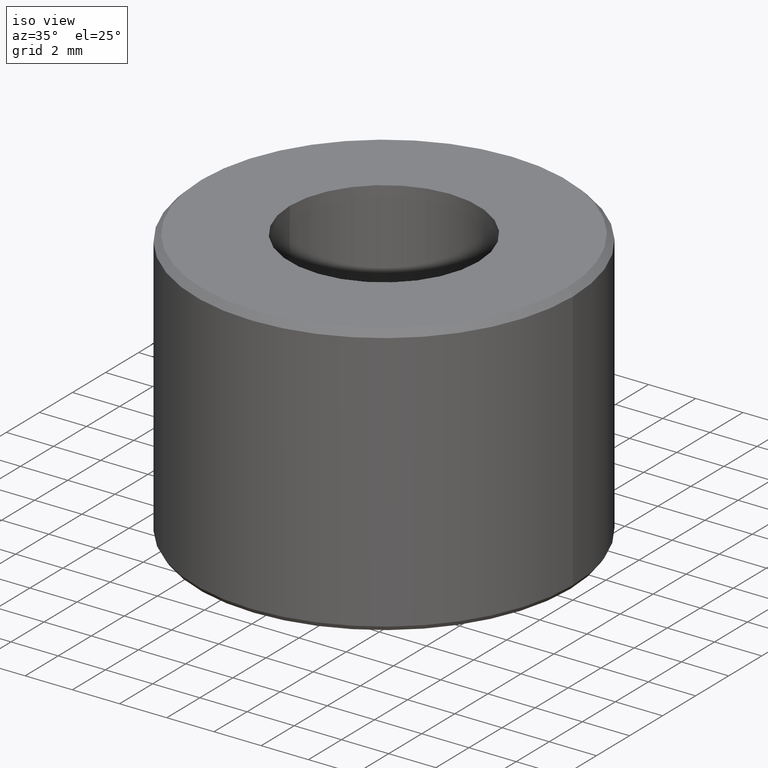
[diagram: clean part render]
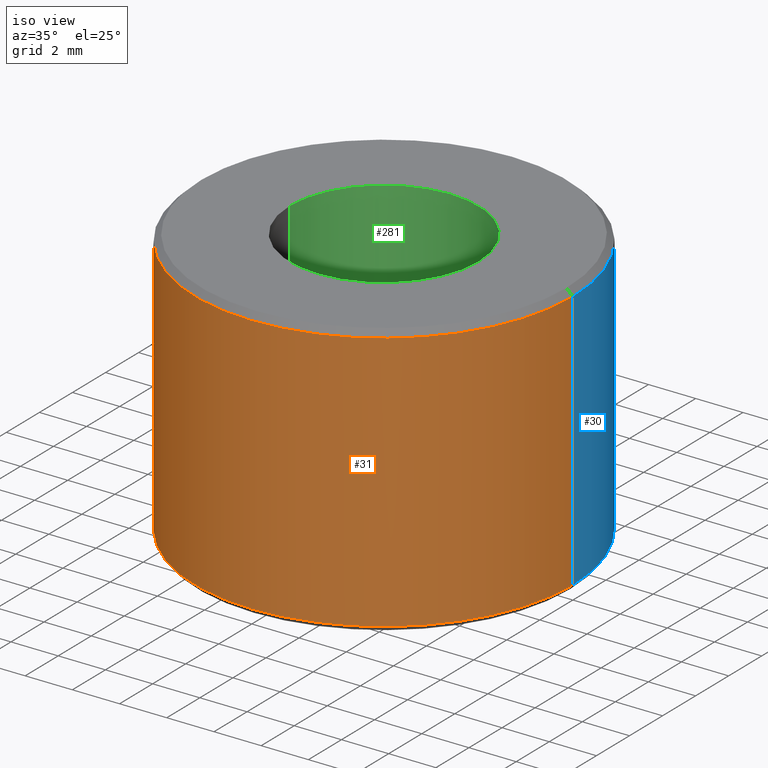
[diagram: same view with three faces highlighted in distinct colors, each labeled with its STEP entity id]
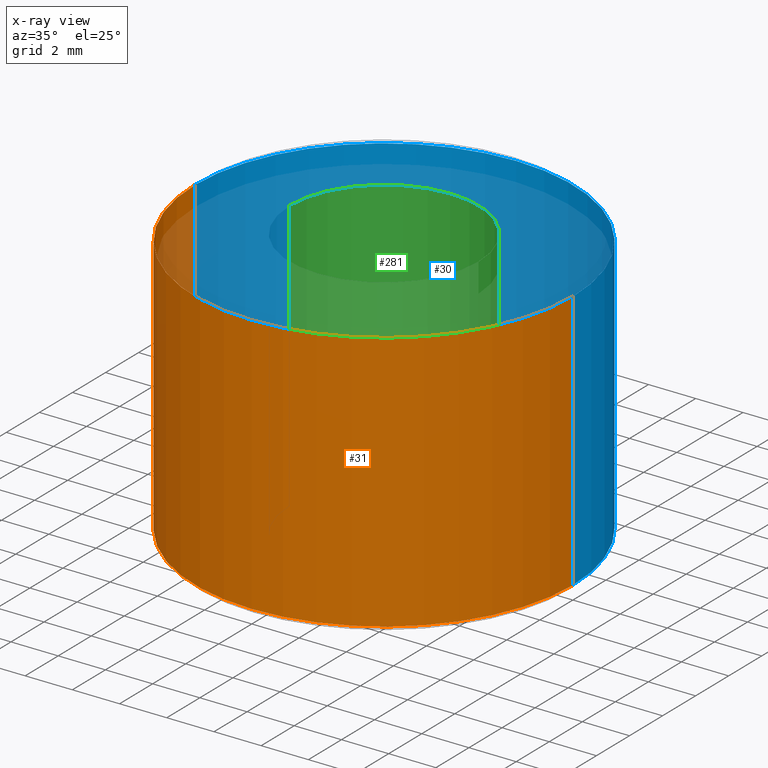
[diagram: x-ray of the same camera — body ghosted, the three highlighted faces saturated]
A machine part, iso view with three faces highlighted in distinct colors.
The next image is the same camera in x-ray (body ghosted, the three faces saturated) — at least one of them is partly hidden behind the body in this view.
Their STEP definitions:

[orange] entity #31 — the highlighted cylindrical surface (partial cylindrical patch) has radius 8 mm, axis along (-0, -0, 1).
#3 = EDGE_CURVE ( 'NONE', #91, #215, #121, .T. ) ;
#26 = CARTESIAN_POINT ( 'NONE',  ( 8.000000000000000000, 0.0000000000000000000, 0.1893181058988668800 ) ) ;
#31 = ADVANCED_FACE ( 'NONE', ( #180 ), #160, .T. ) ;
#59 = AXIS2_PLACEMENT_3D ( 'NONE', #263, #317, #157 ) ;
#65 = ORIENTED_EDGE ( 'NONE', *, *, #143, .T. ) ;
#75 = CARTESIAN_POINT ( 'NONE',  ( 0.0000000000000000000, 0.0000000000000000000, 73.48525816159543900 ) ) ;
#76 = VERTEX_POINT ( 'NONE', #343 ) ;
#90 = AXIS2_PLACEMENT_3D ( 'NONE', #247, #196, #243 ) ;
#91 = VERTEX_POINT ( 'NONE', #26 ) ;
#112 = DIRECTION ( 'NONE',  ( 1.000000000000000000, 0.0000000000000000000, 0.0000000000000000000 ) ) ;
#121 = LINE ( 'NONE', #303, #327 ) ;
#143 = EDGE_CURVE ( 'NONE', #76, #91, #207, .T. ) ;
#145 = EDGE_LOOP ( 'NONE', ( #171, #65, #170, #150 ) ) ;
#150 = ORIENTED_EDGE ( 'NONE', *, *, #239, .F. ) ;
#157 = DIRECTION ( 'NONE',  ( 1.000000000000000000, 0.0000000000000000000, 0.0000000000000000000 ) ) ;
#160 = CYLINDRICAL_SURFACE ( 'NONE', #204, 8.000000000000000000 ) ;
#165 = VERTEX_POINT ( 'NONE', #336 ) ;
#169 = DIRECTION ( 'NONE',  ( -0.0000000000000000000, -0.0000000000000000000, 1.000000000000000000 ) ) ;
#170 = ORIENTED_EDGE ( 'NONE', *, *, #3, .T. ) ;
#171 = ORIENTED_EDGE ( 'NONE', *, *, #254, .F. ) ;
#180 = FACE_OUTER_BOUND ( 'NONE', #145, .T. ) ;
#195 = CIRCLE ( 'NONE', #90, 8.000000000000000000 ) ;
#196 = DIRECTION ( 'NONE',  ( -0.0000000000000000000, -0.0000000000000000000, 1.000000000000000000 ) ) ;
#204 = AXIS2_PLACEMENT_3D ( 'NONE', #75, #298, #112 ) ;
#207 = CIRCLE ( 'NONE', #59, 8.000000000000000000 ) ;
#215 = VERTEX_POINT ( 'NONE', #241 ) ;
#234 = VECTOR ( 'NONE', #270, 1000.000000000000000 ) ;
#239 = EDGE_CURVE ( 'NONE', #165, #215, #195, .T. ) ;
#241 = CARTESIAN_POINT ( 'NONE',  ( 8.000000000000000000, 0.0000000000000000000, 11.23451327433603500 ) ) ;
#243 = DIRECTION ( 'NONE',  ( 1.000000000000000000, 0.0000000000000000000, 0.0000000000000000000 ) ) ;
#247 = CARTESIAN_POINT ( 'NONE',  ( 0.0000000000000000000, 0.0000000000000000000, 11.23451327433603500 ) ) ;
#254 = EDGE_CURVE ( 'NONE', #76, #165, #311, .T. ) ;
#263 = CARTESIAN_POINT ( 'NONE',  ( 0.0000000000000000000, 0.0000000000000000000, 0.1893181058988668800 ) ) ;
#266 = CARTESIAN_POINT ( 'NONE',  ( -8.000000000000000000, 9.797174393178825700E-016, 73.48525816159543900 ) ) ;
#270 = DIRECTION ( 'NONE',  ( -0.0000000000000000000, -0.0000000000000000000, 1.000000000000000000 ) ) ;
#298 = DIRECTION ( 'NONE',  ( -0.0000000000000000000, -0.0000000000000000000, 1.000000000000000000 ) ) ;
#303 = CARTESIAN_POINT ( 'NONE',  ( 8.000000000000000000, 0.0000000000000000000, 73.48525816159543900 ) ) ;
#311 = LINE ( 'NONE', #266, #234 ) ;
#317 = DIRECTION ( 'NONE',  ( -0.0000000000000000000, -0.0000000000000000000, 1.000000000000000000 ) ) ;
#327 = VECTOR ( 'NONE', #169, 1000.000000000000000 ) ;
#336 = CARTESIAN_POINT ( 'NONE',  ( -8.000000000000000000, 9.797174393178825700E-016, 11.23451327433603500 ) ) ;
#343 = CARTESIAN_POINT ( 'NONE',  ( -8.000000000000000000, 9.797174393178827600E-016, 0.1893181058988668800 ) ) ;

[blue] entity #30 — the highlighted cylindrical surface (partial cylindrical patch) has radius 8 mm, axis along (-0, -0, 1).
#3 = EDGE_CURVE ( 'NONE', #91, #215, #121, .T. ) ;
#9 = CARTESIAN_POINT ( 'NONE',  ( 0.0000000000000000000, 0.0000000000000000000, 0.1893181058988668800 ) ) ;
#10 = EDGE_LOOP ( 'NONE', ( #114, #18, #205, #178 ) ) ;
#18 = ORIENTED_EDGE ( 'NONE', *, *, #254, .T. ) ;
#26 = CARTESIAN_POINT ( 'NONE',  ( 8.000000000000000000, 0.0000000000000000000, 0.1893181058988668800 ) ) ;
#30 = ADVANCED_FACE ( 'NONE', ( #113 ), #34, .T. ) ;
#34 = CYLINDRICAL_SURFACE ( 'NONE', #39, 8.000000000000000000 ) ;
#39 = AXIS2_PLACEMENT_3D ( 'NONE', #202, #271, #273 ) ;
#40 = DIRECTION ( 'NONE',  ( -0.0000000000000000000, -0.0000000000000000000, 1.000000000000000000 ) ) ;
#44 = CARTESIAN_POINT ( 'NONE',  ( 0.0000000000000000000, 0.0000000000000000000, 11.23451327433603500 ) ) ;
#76 = VERTEX_POINT ( 'NONE', #343 ) ;
#91 = VERTEX_POINT ( 'NONE', #26 ) ;
#102 = DIRECTION ( 'NONE',  ( -0.0000000000000000000, -0.0000000000000000000, 1.000000000000000000 ) ) ;
#113 = FACE_OUTER_BOUND ( 'NONE', #10, .T. ) ;
#114 = ORIENTED_EDGE ( 'NONE', *, *, #181, .T. ) ;
#121 = LINE ( 'NONE', #303, #327 ) ;
#129 = DIRECTION ( 'NONE',  ( 1.000000000000000000, 0.0000000000000000000, 0.0000000000000000000 ) ) ;
#134 = AXIS2_PLACEMENT_3D ( 'NONE', #44, #102, #319 ) ;
#165 = VERTEX_POINT ( 'NONE', #336 ) ;
#169 = DIRECTION ( 'NONE',  ( -0.0000000000000000000, -0.0000000000000000000, 1.000000000000000000 ) ) ;
#178 = ORIENTED_EDGE ( 'NONE', *, *, #3, .F. ) ;
#181 = EDGE_CURVE ( 'NONE', #91, #76, #250, .T. ) ;
#202 = CARTESIAN_POINT ( 'NONE',  ( 0.0000000000000000000, 0.0000000000000000000, 73.48525816159543900 ) ) ;
#205 = ORIENTED_EDGE ( 'NONE', *, *, #276, .F. ) ;
#212 = AXIS2_PLACEMENT_3D ( 'NONE', #9, #40, #129 ) ;
#215 = VERTEX_POINT ( 'NONE', #241 ) ;
#234 = VECTOR ( 'NONE', #270, 1000.000000000000000 ) ;
#241 = CARTESIAN_POINT ( 'NONE',  ( 8.000000000000000000, 0.0000000000000000000, 11.23451327433603500 ) ) ;
#250 = CIRCLE ( 'NONE', #212, 8.000000000000000000 ) ;
#254 = EDGE_CURVE ( 'NONE', #76, #165, #311, .T. ) ;
#266 = CARTESIAN_POINT ( 'NONE',  ( -8.000000000000000000, 9.797174393178825700E-016, 73.48525816159543900 ) ) ;
#270 = DIRECTION ( 'NONE',  ( -0.0000000000000000000, -0.0000000000000000000, 1.000000000000000000 ) ) ;
#271 = DIRECTION ( 'NONE',  ( -0.0000000000000000000, -0.0000000000000000000, 1.000000000000000000 ) ) ;
#273 = DIRECTION ( 'NONE',  ( 1.000000000000000000, 0.0000000000000000000, 0.0000000000000000000 ) ) ;
#276 = EDGE_CURVE ( 'NONE', #215, #165, #334, .T. ) ;
#303 = CARTESIAN_POINT ( 'NONE',  ( 8.000000000000000000, 0.0000000000000000000, 73.48525816159543900 ) ) ;
#311 = LINE ( 'NONE', #266, #234 ) ;
#319 = DIRECTION ( 'NONE',  ( 1.000000000000000000, 0.0000000000000000000, 0.0000000000000000000 ) ) ;
#327 = VECTOR ( 'NONE', #169, 1000.000000000000000 ) ;
#334 = CIRCLE ( 'NONE', #134, 8.000000000000000000 ) ;
#336 = CARTESIAN_POINT ( 'NONE',  ( -8.000000000000000000, 9.797174393178825700E-016, 11.23451327433603500 ) ) ;
#343 = CARTESIAN_POINT ( 'NONE',  ( -8.000000000000000000, 9.797174393178827600E-016, 0.1893181058988668800 ) ) ;

[green] entity #281 — the highlighted cylindrical surface (partial cylindrical patch) has radius 4 mm, axis along (-0, -0, 1).
#2 = ORIENTED_EDGE ( 'NONE', *, *, #282, .T. ) ;
#13 = DIRECTION ( 'NONE',  ( -0.0000000000000000000, -0.0000000000000000000, 1.000000000000000000 ) ) ;
#15 = DIRECTION ( 'NONE',  ( -0.0000000000000000000, -0.0000000000000000000, 1.000000000000000000 ) ) ;
#35 = AXIS2_PLACEMENT_3D ( 'NONE', #190, #179, #209 ) ;
#37 = LINE ( 'NONE', #240, #326 ) ;
#41 = CARTESIAN_POINT ( 'NONE',  ( -3.999999999999998200, 4.898587196589411800E-016, 11.49999999999980300 ) ) ;
#43 = ORIENTED_EDGE ( 'NONE', *, *, #290, .T. ) ;
#49 = CARTESIAN_POINT ( 'NONE',  ( 0.0000000000000000000, 0.0000000000000000000, -1.942890293094023900E-013 ) ) ;
#51 = CARTESIAN_POINT ( 'NONE',  ( 3.999999999999998200, 0.0000000000000000000, 11.49999999999980300 ) ) ;
#61 = LINE ( 'NONE', #155, #189 ) ;
#63 = VERTEX_POINT ( 'NONE', #51 ) ;
#66 = CARTESIAN_POINT ( 'NONE',  ( 4.000000000000000000, 0.0000000000000000000, -1.942890293094023900E-013 ) ) ;
#67 = AXIS2_PLACEMENT_3D ( 'NONE', #131, #15, #162 ) ;
#79 = CIRCLE ( 'NONE', #175, 4.000000000000000000 ) ;
#86 = DIRECTION ( 'NONE',  ( -0.0000000000000000000, -0.0000000000000000000, 1.000000000000000000 ) ) ;
#103 = DIRECTION ( 'NONE',  ( -0.0000000000000000000, -0.0000000000000000000, 1.000000000000000000 ) ) ;
#117 = CYLINDRICAL_SURFACE ( 'NONE', #67, 3.999999999999999100 ) ;
#131 = CARTESIAN_POINT ( 'NONE',  ( 0.0000000000000000000, 0.0000000000000000000, 73.48525816159543900 ) ) ;
#146 = EDGE_CURVE ( 'NONE', #286, #328, #61, .T. ) ;
#155 = CARTESIAN_POINT ( 'NONE',  ( -3.999999999999999100, 4.898587196589411800E-016, 73.48525816159543900 ) ) ;
#162 = DIRECTION ( 'NONE',  ( 1.000000000000000000, 0.0000000000000000000, 0.0000000000000000000 ) ) ;
#175 = AXIS2_PLACEMENT_3D ( 'NONE', #49, #103, #291 ) ;
#179 = DIRECTION ( 'NONE',  ( -0.0000000000000000000, -0.0000000000000000000, 1.000000000000000000 ) ) ;
#189 = VECTOR ( 'NONE', #13, 1000.000000000000000 ) ;
#190 = CARTESIAN_POINT ( 'NONE',  ( 0.0000000000000000000, 0.0000000000000000000, 11.49999999999980300 ) ) ;
#197 = CIRCLE ( 'NONE', #35, 3.999999999999998200 ) ;
#209 = DIRECTION ( 'NONE',  ( 1.000000000000000000, 0.0000000000000000000, 0.0000000000000000000 ) ) ;
#218 = ORIENTED_EDGE ( 'NONE', *, *, #249, .F. ) ;
#238 = VERTEX_POINT ( 'NONE', #66 ) ;
#240 = CARTESIAN_POINT ( 'NONE',  ( 3.999999999999999100, 0.0000000000000000000, 73.48525816159543900 ) ) ;
#249 = EDGE_CURVE ( 'NONE', #238, #286, #79, .T. ) ;
#269 = FACE_OUTER_BOUND ( 'NONE', #272, .T. ) ;
#272 = EDGE_LOOP ( 'NONE', ( #293, #218, #43, #2 ) ) ;
#281 = ADVANCED_FACE ( 'NONE', ( #269 ), #117, .F. ) ;
#282 = EDGE_CURVE ( 'NONE', #63, #328, #197, .T. ) ;
#286 = VERTEX_POINT ( 'NONE', #340 ) ;
#290 = EDGE_CURVE ( 'NONE', #238, #63, #37, .T. ) ;
#291 = DIRECTION ( 'NONE',  ( 1.000000000000000000, 0.0000000000000000000, 0.0000000000000000000 ) ) ;
#293 = ORIENTED_EDGE ( 'NONE', *, *, #146, .F. ) ;
#326 = VECTOR ( 'NONE', #86, 1000.000000000000000 ) ;
#328 = VERTEX_POINT ( 'NONE', #41 ) ;
#340 = CARTESIAN_POINT ( 'NONE',  ( -4.000000000000000000, 4.898587196589412800E-016, -1.942890293094023900E-013 ) ) ;